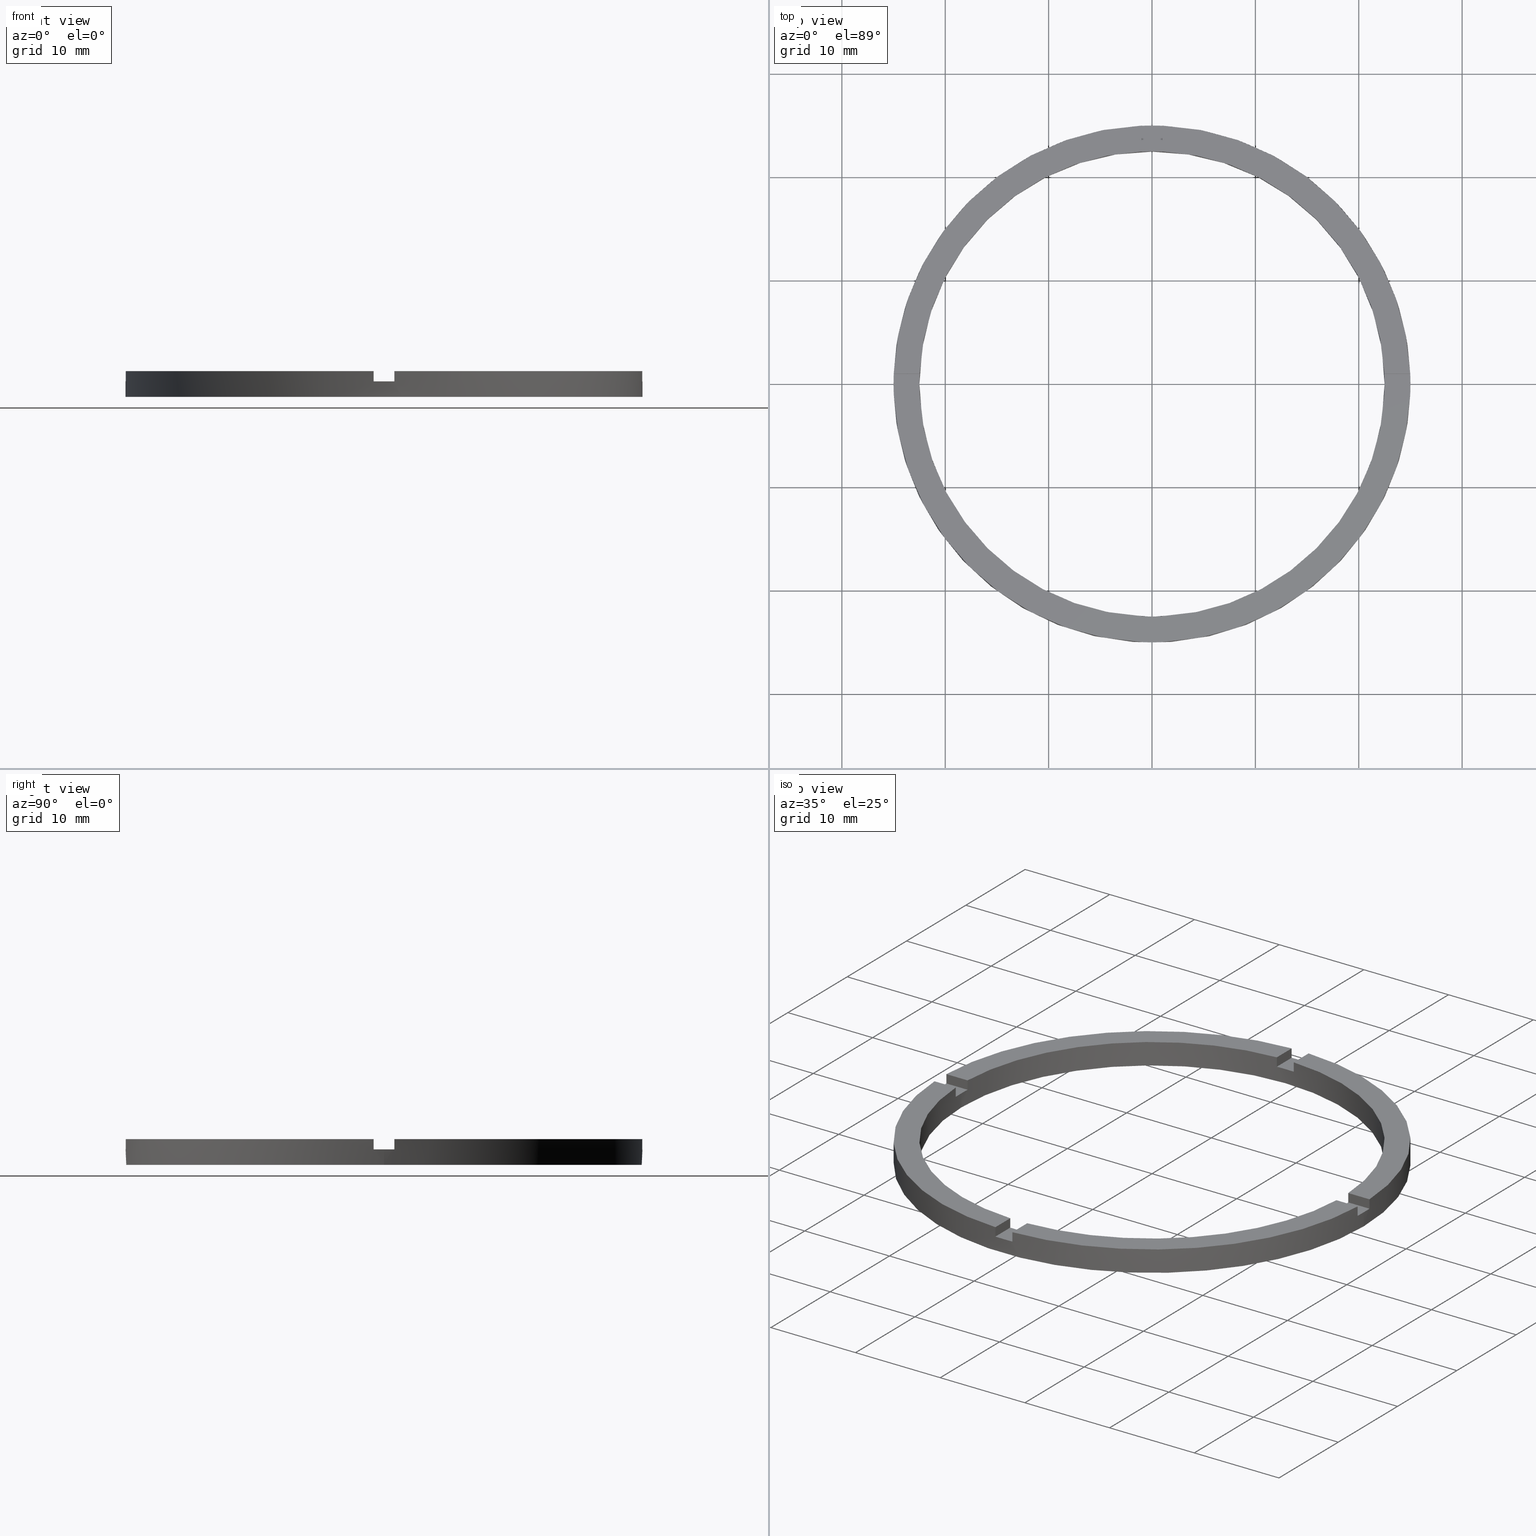
[diagram: canonical four-view strip — front | top / right | iso, engineering-drawing reading convention]
A machine part, canonical four-view strip (front | top / right | iso — engineering-drawing reading convention). The complete STEP part file that produces these views, byte-faithful:
ISO-10303-21;
HEADER;
FILE_DESCRIPTION (( 'STEP AP203' ),
    '1' );
FILE_NAME ('514104.step',
    '2024-12-26T02:37:53',
    ( 'MSI' ),
    ( '' ),
    'SwSTEP 2.0',
    'SolidWorks 2020',
    '' );
FILE_SCHEMA (( 'CONFIG_CONTROL_DESIGN' ));
ENDSEC;

DATA;
#1 = ORIENTED_EDGE ( 'NONE', *, *, #444, .T. ) ;
#2 = ORIENTED_EDGE ( 'NONE', *, *, #499, .F. ) ;
#3 = VERTEX_POINT ( 'NONE', #428 ) ;
#4 = EDGE_CURVE ( 'NONE', #275, #313, #141, .T. ) ;
#5 = CARTESIAN_POINT ( 'NONE',  ( -1.000000000000025979, 22.47776679298902636, 2.500000000000000000 ) ) ;
#6 = CARTESIAN_POINT ( 'NONE',  ( 0.000000000000000000, 0.000000000000000000, 0.000000000000000000 ) ) ;
#7 = DIRECTION ( 'NONE',  ( 0.000000000000000000, 0.000000000000000000, 1.000000000000000000 ) ) ;
#8 = CARTESIAN_POINT ( 'NONE',  ( 0.000000000000000000, 0.000000000000000000, 1.500000000000000000 ) ) ;
#9 = ORIENTED_EDGE ( 'NONE', *, *, #113, .F. ) ;
#10 = ORIENTED_EDGE ( 'NONE', *, *, #501, .T. ) ;
#11 = CARTESIAN_POINT ( 'NONE',  ( -15.00000000000018652, 0.9999999999999756861, 1.500000000000000000 ) ) ;
#12 = EDGE_CURVE ( 'NONE', #275, #412, #434, .T. ) ;
#13 = ORIENTED_EDGE ( 'NONE', *, *, #544, .T. ) ;
#14 = EDGE_CURVE ( 'NONE', #226, #413, #159, .T. ) ;
#15 = EDGE_CURVE ( 'NONE', #497, #229, #688, .T. ) ;
#16 = PLANE ( 'NONE',  #494 ) ;
#17 = ORIENTED_EDGE ( 'NONE', *, *, #535, .T. ) ;
#18 = ORIENTED_EDGE ( 'NONE', *, *, #330, .T. ) ;
#19 = VERTEX_POINT ( 'NONE', #697 ) ;
#20 = ORIENTED_EDGE ( 'NONE', *, *, #297, .F. ) ;
#21 = ORIENTED_EDGE ( 'NONE', *, *, #91, .T. ) ;
#22 = ORIENTED_EDGE ( 'NONE', *, *, #69, .T. ) ;
#23 = CARTESIAN_POINT ( 'NONE',  ( 14.99999999999999645, -1.000000000000157874, 1.500000000000000000 ) ) ;
#24 = DIRECTION ( 'NONE',  ( 1.301042606982605321E-16, -1.000000000000000000, 0.000000000000000000 ) ) ;
#25 = EDGE_LOOP ( 'NONE', ( #720, #468, #761, #17 ) ) ;
#26 = EDGE_CURVE ( 'NONE', #509, #164, #396, .T. ) ;
#27 = DIRECTION ( 'NONE',  ( -1.000000000000000000, -1.734723475976807341E-16, 0.000000000000000000 ) ) ;
#28 = CC_DESIGN_PERSON_AND_ORGANIZATION_ASSIGNMENT ( #561, #435, ( #334 ) ) ;
#29 = DIRECTION ( 'NONE',  ( 1.000000000000000000, 1.734723475976807341E-16, -0.000000000000000000 ) ) ;
#30 = CARTESIAN_POINT ( 'NONE',  ( 0.000000000000000000, 0.000000000000000000, 0.000000000000000000 ) ) ;
#31 = AXIS2_PLACEMENT_3D ( 'NONE', #104, #150, #291 ) ;
#32 = CARTESIAN_POINT ( 'NONE',  ( 22.50000000000000355, 2.755455298081545172E-15, 1.500000000000000000 ) ) ;
#33 = FACE_OUTER_BOUND ( 'NONE', #537, .T. ) ;
#34 = ADVANCED_FACE ( 'NONE', ( #386 ), #590, .F. ) ;
#35 = PERSON_AND_ORGANIZATION_ROLE ( 'design_owner' ) ;
#36 = DIRECTION ( 'NONE',  ( -0.000000000000000000, -0.000000000000000000, -1.000000000000000000 ) ) ;
#37 = LINE ( 'NONE', #417, #322 ) ;
#38 = PERSON_AND_ORGANIZATION ( #366, #546 ) ;
#39 = AXIS2_PLACEMENT_3D ( 'NONE', #406, #619, #551 ) ;
#40 = DIRECTION ( 'NONE',  ( -1.301042606982605321E-16, 1.000000000000000000, -0.000000000000000000 ) ) ;
#41 = PERSON_AND_ORGANIZATION ( #366, #546 ) ;
#42 = APPROVAL_ROLE ( '' ) ;
#43 = LOCAL_TIME ( 10, 37, 53.00000000000000000, #555 ) ;
#44 = ADVANCED_FACE ( 'NONE', ( #668 ), #663, .T. ) ;
#45 = EDGE_CURVE ( 'NONE', #313, #63, #686, .T. ) ;
#46 = AXIS2_PLACEMENT_3D ( 'NONE', #97, #134, #376 ) ;
#47 = PERSON_AND_ORGANIZATION ( #366, #546 ) ;
#48 = CALENDAR_DATE ( 2024, 26, 12 ) ;
#49 = APPROVAL_ROLE ( '' ) ;
#50 = LOCAL_TIME ( 10, 37, 53.00000000000000000, #64 ) ;
#51 = ORIENTED_EDGE ( 'NONE', *, *, #212, .T. ) ;
#52 = CIRCLE ( 'NONE', #392, 25.00000000000000000 ) ;
#53 = ORIENTED_EDGE ( 'NONE', *, *, #131, .T. ) ;
#54 = DATE_AND_TIME ( #566, #298 ) ;
#55 = PRODUCT_DEFINITION ( 'δ֪', '', #334, #263 ) ;
#56 = PLANE ( 'NONE',  #92 ) ;
#57 = ORIENTED_EDGE ( 'NONE', *, *, #634, .F. ) ;
#58 = EDGE_CURVE ( 'NONE', #223, #157, #679, .T. ) ;
#59 = DATE_AND_TIME ( #48, #571 ) ;
#60 = DIRECTION ( 'NONE',  ( 0.000000000000000000, 0.000000000000000000, 1.000000000000000000 ) ) ;
#61 = LINE ( 'NONE', #739, #573 ) ;
#62 = CARTESIAN_POINT ( 'NONE',  ( -15.00000000000018652, -1.000000000000024203, 1.500000000000000000 ) ) ;
#63 = VERTEX_POINT ( 'NONE', #776 ) ;
#64 = COORDINATED_UNIVERSAL_TIME_OFFSET ( 8, 0, .AHEAD. ) ;
#65 = ORIENTED_EDGE ( 'NONE', *, *, #473, .T. ) ;
#66 = AXIS2_PLACEMENT_3D ( 'NONE', #613, #364, #500 ) ;
#67 = CARTESIAN_POINT ( 'NONE',  ( 0.9999999999998391287, -22.47776679298903346, 2.500000000000000000 ) ) ;
#68 = UNCERTAINTY_MEASURE_WITH_UNIT (LENGTH_MEASURE( 1.000000000000000082E-05 ), #498, 'distance_accuracy_value', 'NONE');
#69 = EDGE_CURVE ( 'NONE', #413, #3, #659, .T. ) ;
#70 = CC_DESIGN_DATE_AND_TIME_ASSIGNMENT ( #54, #137, ( #303 ) ) ;
#71 = DIRECTION ( 'NONE',  ( 0.000000000000000000, 0.000000000000000000, 1.000000000000000000 ) ) ;
#72 = DIRECTION ( 'NONE',  ( -1.000000000000000000, 0.000000000000000000, 0.000000000000000000 ) ) ;
#73 = COORDINATED_UNIVERSAL_TIME_OFFSET ( 8, 0, .AHEAD. ) ;
#74 = CARTESIAN_POINT ( 'NONE',  ( -25.00000000000000000, 0.000000000000000000, 2.500000000000000000 ) ) ;
#75 = DATE_AND_TIME ( #587, #593 ) ;
#76 = DIRECTION ( 'NONE',  ( 1.000000000000000000, 0.000000000000000000, 0.000000000000000000 ) ) ;
#77 = DIRECTION ( 'NONE',  ( 1.000000000000000000, 0.000000000000000000, 0.000000000000000000 ) ) ;
#78 = DIRECTION ( 'NONE',  ( 1.000000000000000000, 0.000000000000000000, -0.000000000000000000 ) ) ;
#79 = DIRECTION ( 'NONE',  ( -0.000000000000000000, -0.000000000000000000, -1.000000000000000000 ) ) ;
#80 = AXIS2_PLACEMENT_3D ( 'NONE', #592, #777, #339 ) ;
#81 = CARTESIAN_POINT ( 'NONE',  ( 0.9999999999999740208, 22.47776679298902636, 1.500000000000000000 ) ) ;
#82 = EDGE_CURVE ( 'NONE', #400, #19, #153, .T. ) ;
#83 = CARTESIAN_POINT ( 'NONE',  ( -24.97999199359359679, 0.9999999999999740208, 1.500000000000000000 ) ) ;
#84 = ADVANCED_BREP_SHAPE_REPRESENTATION ( '514104', ( #124, #655 ), #770 ) ;
#85 = DIRECTION ( 'NONE',  ( -1.000000000000000000, -1.734723475976807341E-16, 0.000000000000000000 ) ) ;
#86 = CARTESIAN_POINT ( 'NONE',  ( -1.000000000000160538, -24.97999199359358968, 1.500000000000000000 ) ) ;
#87 = ADVANCED_FACE ( 'NONE', ( #393 ), #56, .T. ) ;
#88 = CARTESIAN_POINT ( 'NONE',  ( 22.47776679298903346, 0.9999999999998423483, 2.500000000000000000 ) ) ;
#89 = CC_DESIGN_PERSON_AND_ORGANIZATION_ASSIGNMENT ( #38, #35, ( #431 ) ) ;
#90 = SHAPE_DEFINITION_REPRESENTATION ( #658, #84 ) ;
#91 = EDGE_CURVE ( 'NONE', #682, #757, #671, .T. ) ;
#92 = AXIS2_PLACEMENT_3D ( 'NONE', #100, #338, #766 ) ;
#93 = DIRECTION ( 'NONE',  ( 1.000000000000000000, 0.000000000000000000, 0.000000000000000000 ) ) ;
#94 = CARTESIAN_POINT ( 'NONE',  ( -1.000000000000025979, 22.47776679298902636, 2.500000000000000000 ) ) ;
#95 = DIRECTION ( 'NONE',  ( 0.000000000000000000, 1.000000000000000000, 0.000000000000000000 ) ) ;
#96 = ADVANCED_FACE ( 'NONE', ( #145 ), #678, .F. ) ;
#97 = CARTESIAN_POINT ( 'NONE',  ( 0.000000000000000000, 0.000000000000000000, 1.500000000000000000 ) ) ;
#98 = PERSON_AND_ORGANIZATION_ROLE ( 'design_supplier' ) ;
#99 = DIRECTION ( 'NONE',  ( -0.000000000000000000, -0.000000000000000000, -1.000000000000000000 ) ) ;
#100 = CARTESIAN_POINT ( 'NONE',  ( 0.000000000000000000, 0.000000000000000000, 1.500000000000000000 ) ) ;
#101 = DIRECTION ( 'NONE',  ( -0.000000000000000000, -0.000000000000000000, -1.000000000000000000 ) ) ;
#102 = AXIS2_PLACEMENT_3D ( 'NONE', #377, #373, #122 ) ;
#103 = EDGE_CURVE ( 'NONE', #769, #491, #394, .T. ) ;
#104 = CARTESIAN_POINT ( 'NONE',  ( 0.000000000000000000, 0.000000000000000000, 2.500000000000000000 ) ) ;
#105 = CARTESIAN_POINT ( 'NONE',  ( 24.97999199359358968, -1.000000000000157430, 1.500000000000000000 ) ) ;
#106 = DIRECTION ( 'NONE',  ( -0.000000000000000000, -0.000000000000000000, -1.000000000000000000 ) ) ;
#107 = DIRECTION ( 'NONE',  ( 1.000000000000000000, 0.000000000000000000, -0.000000000000000000 ) ) ;
#108 = AXIS2_PLACEMENT_3D ( 'NONE', #349, #559, #550 ) ;
#109 = DIRECTION ( 'NONE',  ( 1.000000000000000000, 0.000000000000000000, -0.000000000000000000 ) ) ;
#110 = DIRECTION ( 'NONE',  ( 1.000000000000000000, 0.000000000000000000, 0.000000000000000000 ) ) ;
#111 = EDGE_CURVE ( 'NONE', #490, #497, #163, .T. ) ;
#112 = ORIENTED_EDGE ( 'NONE', *, *, #536, .T. ) ;
#113 = EDGE_CURVE ( 'NONE', #162, #744, #169, .T. ) ;
#114 = PRODUCT_RELATED_PRODUCT_CATEGORY ( 'detail', '', ( #431 ) ) ;
#115 = PLANE ( 'NONE',  #356 ) ;
#116 = CARTESIAN_POINT ( 'NONE',  ( -22.47776679298902636, -1.000000000000025535, 2.500000000000000000 ) ) ;
#117 = CARTESIAN_POINT ( 'NONE',  ( 0.000000000000000000, 0.000000000000000000, 2.500000000000000000 ) ) ;
#118 = DIRECTION ( 'NONE',  ( 0.000000000000000000, 0.000000000000000000, 1.000000000000000000 ) ) ;
#119 = ADVANCED_FACE ( 'NONE', ( #681 ), #348, .F. ) ;
#120 = CARTESIAN_POINT ( 'NONE',  ( 0.9999999999999740208, 15.00000000000000178, 2.500000000000000000 ) ) ;
#121 = DIRECTION ( 'NONE',  ( 1.000000000000000000, 0.000000000000000000, 0.000000000000000000 ) ) ;
#122 = DIRECTION ( 'NONE',  ( 1.000000000000000000, 0.000000000000000000, -0.000000000000000000 ) ) ;
#123 = CARTESIAN_POINT ( 'NONE',  ( 0.9999999999998382405, -15.00000000000018119, 1.500000000000000000 ) ) ;
#124 = MANIFOLD_SOLID_BREP ( '�г�-����1', #409 ) ;
#125 = CARTESIAN_POINT ( 'NONE',  ( 25.00000000000000000, 3.061616997868383043E-15, 2.500000000000000000 ) ) ;
#126 = DIRECTION ( 'NONE',  ( 1.000000000000000000, 0.000000000000000000, 0.000000000000000000 ) ) ;
#127 = EDGE_CURVE ( 'NONE', #527, #272, #419, .T. ) ;
#128 = DIRECTION ( 'NONE',  ( 1.000000000000000000, 0.000000000000000000, -0.000000000000000000 ) ) ;
#129 = CARTESIAN_POINT ( 'NONE',  ( 0.000000000000000000, 0.000000000000000000, 2.500000000000000000 ) ) ;
#130 = AXIS2_PLACEMENT_3D ( 'NONE', #545, #323, #354 ) ;
#131 = EDGE_CURVE ( 'NONE', #223, #135, #418, .T. ) ;
#132 = ADVANCED_FACE ( 'NONE', ( #147 ), #740, .F. ) ;
#133 = CARTESIAN_POINT ( 'NONE',  ( 0.000000000000000000, 0.000000000000000000, 1.500000000000000000 ) ) ;
#134 = DIRECTION ( 'NONE',  ( 0.000000000000000000, 0.000000000000000000, 1.000000000000000000 ) ) ;
#135 = VERTEX_POINT ( 'NONE', #723 ) ;
#136 = ADVANCED_FACE ( 'NONE', ( #422, #408 ), #644, .F. ) ;
#137 = DATE_TIME_ROLE ( 'classification_date' ) ;
#138 = APPROVAL ( #584, 'δָ��' ) ;
#139 = CARTESIAN_POINT ( 'NONE',  ( -24.97999199359359679, 0.9999999999999740208, 2.500000000000000000 ) ) ;
#140 = DIRECTION ( 'NONE',  ( 0.000000000000000000, 0.000000000000000000, 1.000000000000000000 ) ) ;
#141 = LINE ( 'NONE', #577, #660 ) ;
#142 = DIRECTION ( 'NONE',  ( 0.000000000000000000, 0.000000000000000000, 1.000000000000000000 ) ) ;
#143 = AXIS2_PLACEMENT_3D ( 'NONE', #286, #60, #225 ) ;
#144 = VECTOR ( 'NONE', #99, 1000.000000000000000 ) ;
#145 = FACE_OUTER_BOUND ( 'NONE', #158, .T. ) ;
#146 = VERTEX_POINT ( 'NONE', #598 ) ;
#147 = FACE_OUTER_BOUND ( 'NONE', #196, .T. ) ;
#148 = ORIENTED_EDGE ( 'NONE', *, *, #535, .F. ) ;
#149 = ORIENTED_EDGE ( 'NONE', *, *, #582, .T. ) ;
#150 = DIRECTION ( 'NONE',  ( 0.000000000000000000, 0.000000000000000000, 1.000000000000000000 ) ) ;
#151 = CARTESIAN_POINT ( 'NONE',  ( 0.000000000000000000, 0.000000000000000000, 2.500000000000000000 ) ) ;
#152 = VECTOR ( 'NONE', #462, 1000.000000000000000 ) ;
#153 = LINE ( 'NONE', #335, #666 ) ;
#154 = EDGE_CURVE ( 'NONE', #564, #725, #684, .T. ) ;
#155 = AXIS2_PLACEMENT_3D ( 'NONE', #780, #595, #514 ) ;
#156 = CARTESIAN_POINT ( 'NONE',  ( 0.9999999999999740208, 24.97999199359359679, 2.500000000000000000 ) ) ;
#157 = VERTEX_POINT ( 'NONE', #389 ) ;
#158 = EDGE_LOOP ( 'NONE', ( #533, #665, #531, #432, #480, #492, #53, #496, #729, #569, #260, #463 ) ) ;
#159 = CIRCLE ( 'NONE', #503, 22.50000000000000355 ) ;
#160 = CARTESIAN_POINT ( 'NONE',  ( 25.00000000000000000, 3.061616997868383043E-15, 0.000000000000000000 ) ) ;
#161 = CARTESIAN_POINT ( 'NONE',  ( 14.99999999999999645, 0.9999999999998421263, 1.500000000000000000 ) ) ;
#162 = VERTEX_POINT ( 'NONE', #600 ) ;
#163 = LINE ( 'NONE', #168, #414 ) ;
#164 = VERTEX_POINT ( 'NONE', #160 ) ;
#165 = CIRCLE ( 'NONE', #589, 25.00000000000000000 ) ;
#166 = ORIENTED_EDGE ( 'NONE', *, *, #26, .T. ) ;
#167 = LINE ( 'NONE', #346, #676 ) ;
#168 = CARTESIAN_POINT ( 'NONE',  ( -1.000000000000025979, 24.97999199359359679, 2.500000000000000000 ) ) ;
#169 = CIRCLE ( 'NONE', #351, 22.50000000000000355 ) ;
#170 = EDGE_LOOP ( 'NONE', ( #219, #180 ) ) ;
#171 = ORIENTED_EDGE ( 'NONE', *, *, #542, .T. ) ;
#172 = FACE_OUTER_BOUND ( 'NONE', #234, .T. ) ;
#173 = ORIENTED_EDGE ( 'NONE', *, *, #14, .F. ) ;
#174 = AXIS2_PLACEMENT_3D ( 'NONE', #8, #714, #77 ) ;
#175 = VERTEX_POINT ( 'NONE', #342 ) ;
#176 = ORIENTED_EDGE ( 'NONE', *, *, #4, .T. ) ;
#177 = VERTEX_POINT ( 'NONE', #522 ) ;
#178 = ORIENTED_EDGE ( 'NONE', *, *, #615, .F. ) ;
#179 = CARTESIAN_POINT ( 'NONE',  ( -1.000000000000160538, -24.97999199359358968, 2.500000000000000000 ) ) ;
#180 = ORIENTED_EDGE ( 'NONE', *, *, #350, .F. ) ;
#181 = VECTOR ( 'NONE', #101, 1000.000000000000000 ) ;
#182 = CIRCLE ( 'NONE', #108, 22.50000000000000355 ) ;
#183 = VECTOR ( 'NONE', #382, 1000.000000000000000 ) ;
#184 = CARTESIAN_POINT ( 'NONE',  ( -22.50000000000000355, 0.000000000000000000, 0.000000000000000000 ) ) ;
#185 = EDGE_CURVE ( 'NONE', #564, #526, #165, .T. ) ;
#186 = FACE_OUTER_BOUND ( 'NONE', #574, .T. ) ;
#187 = CIRCLE ( 'NONE', #80, 22.50000000000000355 ) ;
#188 = CC_DESIGN_APPROVAL ( #138, ( #334 ) ) ;
#189 = ADVANCED_FACE ( 'NONE', ( #690 ), #647, .T. ) ;
#190 = CARTESIAN_POINT ( 'NONE',  ( 24.97999199359360034, 0.9999999999998425704, 1.500000000000000000 ) ) ;
#191 = ORIENTED_EDGE ( 'NONE', *, *, #222, .T. ) ;
#192 = LINE ( 'NONE', #618, #201 ) ;
#193 = CIRCLE ( 'NONE', #471, 22.50000000000000355 ) ;
#194 = CARTESIAN_POINT ( 'NONE',  ( 0.000000000000000000, 0.000000000000000000, 1.500000000000000000 ) ) ;
#195 = VECTOR ( 'NONE', #387, 1000.000000000000000 ) ;
#196 = EDGE_LOOP ( 'NONE', ( #257, #65, #1, #57 ) ) ;
#197 = CIRCLE ( 'NONE', #588, 25.00000000000000000 ) ;
#198 = VECTOR ( 'NONE', #142, 1000.000000000000000 ) ;
#199 = CIRCLE ( 'NONE', #344, 25.00000000000000000 ) ;
#200 = CARTESIAN_POINT ( 'NONE',  ( 0.000000000000000000, 0.000000000000000000, 2.500000000000000000 ) ) ;
#201 = VECTOR ( 'NONE', #654, 1000.000000000000000 ) ;
#202 = LINE ( 'NONE', #614, #747 ) ;
#203 = LINE ( 'NONE', #120, #733 ) ;
#204 = PLANE ( 'NONE',  #312 ) ;
#205 = LINE ( 'NONE', #340, #440 ) ;
#206 = APPLICATION_CONTEXT ( 'configuration controlled 3d designs of mechanical parts and assemblies' ) ;
#207 = VECTOR ( 'NONE', #384, 1000.000000000000000 ) ;
#208 = CIRCLE ( 'NONE', #31, 25.00000000000000000 ) ;
#209 = ORIENTED_EDGE ( 'NONE', *, *, #374, .F. ) ;
#210 = LINE ( 'NONE', #649, #474 ) ;
#211 = DIRECTION ( 'NONE',  ( -0.000000000000000000, -0.000000000000000000, -1.000000000000000000 ) ) ;
#212 = EDGE_CURVE ( 'NONE', #226, #762, #167, .T. ) ;
#213 = ORIENTED_EDGE ( 'NONE', *, *, #12, .F. ) ;
#214 = CYLINDRICAL_SURFACE ( 'NONE', #371, 22.50000000000000355 ) ;
#215 = FACE_OUTER_BOUND ( 'NONE', #25, .T. ) ;
#216 = LINE ( 'NONE', #669, #449 ) ;
#217 = ORIENTED_EDGE ( 'NONE', *, *, #609, .F. ) ;
#218 = CARTESIAN_POINT ( 'NONE',  ( -22.47776679298902636, -1.000000000000025535, 2.500000000000000000 ) ) ;
#219 = ORIENTED_EDGE ( 'NONE', *, *, #26, .F. ) ;
#220 = PLANE ( 'NONE',  #102 ) ;
#221 = ORIENTED_EDGE ( 'NONE', *, *, #705, .T. ) ;
#222 = EDGE_CURVE ( 'NONE', #490, #783, #425, .T. ) ;
#223 = VERTEX_POINT ( 'NONE', #116 ) ;
#224 = EDGE_CURVE ( 'NONE', #272, #3, #673, .T. ) ;
#225 = DIRECTION ( 'NONE',  ( 1.000000000000000000, 0.000000000000000000, -0.000000000000000000 ) ) ;
#226 = VERTEX_POINT ( 'NONE', #632 ) ;
#227 = AXIS2_PLACEMENT_3D ( 'NONE', #523, #211, #72 ) ;
#228 = PLANE ( 'NONE',  #529 ) ;
#229 = VERTEX_POINT ( 'NONE', #706 ) ;
#230 = DIRECTION ( 'NONE',  ( 0.000000000000000000, 0.000000000000000000, 1.000000000000000000 ) ) ;
#231 = ORIENTED_EDGE ( 'NONE', *, *, #773, .F. ) ;
#232 = VERTEX_POINT ( 'NONE', #105 ) ;
#233 = ORIENTED_EDGE ( 'NONE', *, *, #455, .F. ) ;
#234 = EDGE_LOOP ( 'NONE', ( #239, #22, #767, #280, #756, #10, #483, #18, #680, #410, #270, #9 ) ) ;
#235 = ORIENTED_EDGE ( 'NONE', *, *, #111, .F. ) ;
#236 = ORIENTED_EDGE ( 'NONE', *, *, #15, .F. ) ;
#237 = AXIS2_PLACEMENT_3D ( 'NONE', #557, #395, #549 ) ;
#238 = ORIENTED_EDGE ( 'NONE', *, *, #12, .T. ) ;
#239 = ORIENTED_EDGE ( 'NONE', *, *, #657, .F. ) ;
#240 = ORIENTED_EDGE ( 'NONE', *, *, #608, .F. ) ;
#241 = CARTESIAN_POINT ( 'NONE',  ( -22.50000000000000355, 0.000000000000000000, 1.500000000000000000 ) ) ;
#242 = DIRECTION ( 'NONE',  ( -0.000000000000000000, -0.000000000000000000, -1.000000000000000000 ) ) ;
#243 = ORIENTED_EDGE ( 'NONE', *, *, #350, .T. ) ;
#244 = DIRECTION ( 'NONE',  ( -1.301042606982605321E-16, 1.000000000000000000, 0.000000000000000000 ) ) ;
#245 = PLANE ( 'NONE',  #638 ) ;
#246 = DIRECTION ( 'NONE',  ( 0.000000000000000000, 0.000000000000000000, 1.000000000000000000 ) ) ;
#247 = DIRECTION ( 'NONE',  ( 1.000000000000000000, -0.000000000000000000, 0.000000000000000000 ) ) ;
#248 = ADVANCED_FACE ( 'NONE', ( #172 ), #214, .F. ) ;
#249 = DIRECTION ( 'NONE',  ( -0.000000000000000000, -0.000000000000000000, -1.000000000000000000 ) ) ;
#250 = DIRECTION ( 'NONE',  ( 0.000000000000000000, 0.000000000000000000, 1.000000000000000000 ) ) ;
#251 = CARTESIAN_POINT ( 'NONE',  ( 22.47776679298903346, 0.9999999999998423483, 2.500000000000000000 ) ) ;
#252 = ORIENTED_EDGE ( 'NONE', *, *, #127, .F. ) ;
#253 = EDGE_CURVE ( 'NONE', #429, #229, #469, .T. ) ;
#254 = ORIENTED_EDGE ( 'NONE', *, *, #333, .T. ) ;
#255 = VERTEX_POINT ( 'NONE', #479 ) ;
#256 = DIRECTION ( 'NONE',  ( -1.734723475976807341E-16, 1.000000000000000000, 0.000000000000000000 ) ) ;
#257 = ORIENTED_EDGE ( 'NONE', *, *, #333, .F. ) ;
#258 = CARTESIAN_POINT ( 'NONE',  ( -25.00000000000000000, 0.000000000000000000, 1.500000000000000000 ) ) ;
#259 = CARTESIAN_POINT ( 'NONE',  ( -1.000000000000161871, -15.00000000000018119, 1.500000000000000000 ) ) ;
#260 = ORIENTED_EDGE ( 'NONE', *, *, #580, .T. ) ;
#261 = ORIENTED_EDGE ( 'NONE', *, *, #615, .T. ) ;
#262 = PLANE ( 'NONE',  #667 ) ;
#263 = DESIGN_CONTEXT ( 'detailed design', #206, 'design' ) ;
#264 = ORIENTED_EDGE ( 'NONE', *, *, #224, .F. ) ;
#265 = CARTESIAN_POINT ( 'NONE',  ( -24.97999199359359679, 0.9999999999999740208, 2.500000000000000000 ) ) ;
#266 = EDGE_CURVE ( 'NONE', #711, #63, #193, .T. ) ;
#267 = CARTESIAN_POINT ( 'NONE',  ( -15.00000000000018652, 0.9999999999999756861, 1.500000000000000000 ) ) ;
#268 = ORIENTED_EDGE ( 'NONE', *, *, #103, .F. ) ;
#269 = EDGE_LOOP ( 'NONE', ( #317, #458, #672, #689, #173, #755 ) ) ;
#270 = ORIENTED_EDGE ( 'NONE', *, *, #347, .T. ) ;
#271 = ORIENTED_EDGE ( 'NONE', *, *, #630, .F. ) ;
#272 = VERTEX_POINT ( 'NONE', #190 ) ;
#273 = DIRECTION ( 'NONE',  ( 1.301042606982605321E-16, -1.000000000000000000, 0.000000000000000000 ) ) ;
#274 = APPLICATION_PROTOCOL_DEFINITION ( 'international standard', 'config_control_design', 1994, #206 ) ;
#275 = VERTEX_POINT ( 'NONE', #710 ) ;
#276 = ORIENTED_EDGE ( 'NONE', *, *, #639, .T. ) ;
#277 = ORIENTED_EDGE ( 'NONE', *, *, #444, .F. ) ;
#278 = ORIENTED_EDGE ( 'NONE', *, *, #634, .T. ) ;
#279 = ADVANCED_FACE ( 'NONE', ( #186 ), #380, .F. ) ;
#280 = ORIENTED_EDGE ( 'NONE', *, *, #103, .T. ) ;
#281 = DIRECTION ( 'NONE',  ( 1.000000000000000000, 0.000000000000000000, 0.000000000000000000 ) ) ;
#282 = DIRECTION ( 'NONE',  ( 1.000000000000000000, 0.000000000000000000, 0.000000000000000000 ) ) ;
#283 = AXIS2_PLACEMENT_3D ( 'NONE', #133, #576, #398 ) ;
#284 = LINE ( 'NONE', #179, #547 ) ;
#285 = EDGE_CURVE ( 'NONE', #757, #509, #464, .T. ) ;
#286 = CARTESIAN_POINT ( 'NONE',  ( 0.000000000000000000, 0.000000000000000000, 2.500000000000000000 ) ) ;
#287 = CARTESIAN_POINT ( 'NONE',  ( 0.000000000000000000, 0.000000000000000000, 1.500000000000000000 ) ) ;
#288 = AXIS2_PLACEMENT_3D ( 'NONE', #117, #650, #552 ) ;
#289 = CALENDAR_DATE ( 2024, 26, 12 ) ;
#290 = APPROVAL_PERSON_ORGANIZATION ( #304, #138, #42 ) ;
#291 = DIRECTION ( 'NONE',  ( 1.000000000000000000, 0.000000000000000000, 0.000000000000000000 ) ) ;
#292 = CALENDAR_DATE ( 2024, 26, 12 ) ;
#293 = DIRECTION ( 'NONE',  ( -0.000000000000000000, -0.000000000000000000, -1.000000000000000000 ) ) ;
#294 = APPROVAL_DATE_TIME ( #558, #138 ) ;
#295 = AXIS2_PLACEMENT_3D ( 'NONE', #11, #256, #85 ) ;
#296 = COORDINATED_UNIVERSAL_TIME_OFFSET ( 8, 0, .AHEAD. ) ;
#297 = EDGE_CURVE ( 'NONE', #19, #255, #741, .T. ) ;
#298 = LOCAL_TIME ( 10, 37, 53.00000000000000000, #296 ) ;
#299 = CARTESIAN_POINT ( 'NONE',  ( -24.97999199359359679, -1.000000000000025979, 2.500000000000000000 ) ) ;
#300 = ORIENTED_EDGE ( 'NONE', *, *, #512, .T. ) ;
#301 = CIRCLE ( 'NONE', #283, 25.00000000000000000 ) ;
#302 = CARTESIAN_POINT ( 'NONE',  ( 0.000000000000000000, 0.000000000000000000, 2.500000000000000000 ) ) ;
#303 = SECURITY_CLASSIFICATION ( '', '', #625 ) ;
#304 = PERSON_AND_ORGANIZATION ( #366, #546 ) ;
#305 = EDGE_LOOP ( 'NONE', ( #407, #401, #423, #485 ) ) ;
#306 = PERSON_AND_ORGANIZATION ( #366, #546 ) ;
#307 = ORIENTED_EDGE ( 'NONE', *, *, #285, .F. ) ;
#308 = DIRECTION ( 'NONE',  ( 1.000000000000000000, 0.000000000000000000, -0.000000000000000000 ) ) ;
#309 = APPROVAL_DATE_TIME ( #554, #775 ) ;
#310 = DIRECTION ( 'NONE',  ( -0.000000000000000000, -0.000000000000000000, -1.000000000000000000 ) ) ;
#311 = DIRECTION ( 'NONE',  ( 1.000000000000000000, 0.000000000000000000, 0.000000000000000000 ) ) ;
#312 = AXIS2_PLACEMENT_3D ( 'NONE', #759, #433, #581 ) ;
#313 = VERTEX_POINT ( 'NONE', #736 ) ;
#314 = DIRECTION ( 'NONE',  ( 0.000000000000000000, 0.000000000000000000, 1.000000000000000000 ) ) ;
#315 = ADVANCED_FACE ( 'NONE', ( #735 ), #262, .F. ) ;
#316 = CARTESIAN_POINT ( 'NONE',  ( 0.9999999999999740208, 22.47776679298902636, 2.500000000000000000 ) ) ;
#317 = ORIENTED_EDGE ( 'NONE', *, *, #543, .T. ) ;
#318 = CYLINDRICAL_SURFACE ( 'NONE', #39, 25.00000000000000000 ) ;
#319 = DIRECTION ( 'NONE',  ( 0.000000000000000000, 0.000000000000000000, 1.000000000000000000 ) ) ;
#320 = ORIENTED_EDGE ( 'NONE', *, *, #602, .T. ) ;
#321 = DIRECTION ( 'NONE',  ( 1.000000000000000000, 0.000000000000000000, 0.000000000000000000 ) ) ;
#322 = VECTOR ( 'NONE', #250, 1000.000000000000000 ) ;
#323 = DIRECTION ( 'NONE',  ( -1.000000000000000000, 0.000000000000000000, 0.000000000000000000 ) ) ;
#325 = EDGE_CURVE ( 'NONE', #232, #177, #745, .T. ) ;
#324 = ADVANCED_FACE ( 'NONE', ( #709 ), #115, .T. ) ;
#326 = APPROVAL_DATE_TIME ( #75, #516 ) ;
#327 = DIRECTION ( 'NONE',  ( -1.000000000000000000, -4.336808689942018352E-17, -0.000000000000000000 ) ) ;
#328 = ADVANCED_FACE ( 'NONE', ( #437 ), #403, .T. ) ;
#329 = APPLICATION_CONTEXT ( 'configuration controlled 3d designs of mechanical parts and assemblies' ) ;
#330 = EDGE_CURVE ( 'NONE', #429, #146, #727, .T. ) ;
#331 = EDGE_CURVE ( 'NONE', #481, #157, #707, .T. ) ;
#332 = DIRECTION ( 'NONE',  ( 0.000000000000000000, 0.000000000000000000, 1.000000000000000000 ) ) ;
#333 = EDGE_CURVE ( 'NONE', #711, #404, #192, .T. ) ;
#334 = PRODUCT_DEFINITION_FORMATION_WITH_SPECIFIED_SOURCE ( '�κ�', '', #431, .NOT_KNOWN. ) ;
#335 = CARTESIAN_POINT ( 'NONE',  ( 0.9999999999999740208, 15.00000000000000178, 1.500000000000000000 ) ) ;
#336 = ORIENTED_EDGE ( 'NONE', *, *, #91, .F. ) ;
#337 = DIRECTION ( 'NONE',  ( 0.000000000000000000, 0.000000000000000000, 1.000000000000000000 ) ) ;
#338 = DIRECTION ( 'NONE',  ( -0.000000000000000000, 0.000000000000000000, 1.000000000000000000 ) ) ;
#339 = DIRECTION ( 'NONE',  ( 1.000000000000000000, 0.000000000000000000, 0.000000000000000000 ) ) ;
#340 = CARTESIAN_POINT ( 'NONE',  ( -15.00000000000018652, -1.000000000000024203, 1.500000000000000000 ) ) ;
#341 = CARTESIAN_POINT ( 'NONE',  ( -25.00000000000000000, 0.000000000000000000, 0.000000000000000000 ) ) ;
#342 = CARTESIAN_POINT ( 'NONE',  ( -22.47776679298902636, 0.9999999999999744649, 1.500000000000000000 ) ) ;
#343 = DIRECTION ( 'NONE',  ( 0.000000000000000000, 1.000000000000000000, 0.000000000000000000 ) ) ;
#344 = AXIS2_PLACEMENT_3D ( 'NONE', #635, #695, #121 ) ;
#345 = DIRECTION ( 'NONE',  ( 0.000000000000000000, -0.000000000000000000, 1.000000000000000000 ) ) ;
#346 = CARTESIAN_POINT ( 'NONE',  ( 22.47776679298901925, -1.000000000000157652, 2.500000000000000000 ) ) ;
#347 = EDGE_CURVE ( 'NONE', #481, #744, #443, .T. ) ;
#348 = PLANE ( 'NONE',  #610 ) ;
#349 = CARTESIAN_POINT ( 'NONE',  ( 0.000000000000000000, 0.000000000000000000, 0.000000000000000000 ) ) ;
#350 = EDGE_CURVE ( 'NONE', #164, #509, #738, .T. ) ;
#351 = AXIS2_PLACEMENT_3D ( 'NONE', #6, #385, #110 ) ;
#352 = DIRECTION ( 'NONE',  ( 0.000000000000000000, 0.000000000000000000, 1.000000000000000000 ) ) ;
#353 = CARTESIAN_POINT ( 'NONE',  ( 0.000000000000000000, 0.000000000000000000, 1.500000000000000000 ) ) ;
#354 = DIRECTION ( 'NONE',  ( 0.000000000000000000, 0.000000000000000000, 1.000000000000000000 ) ) ;
#355 = PLANE ( 'NONE',  #699 ) ;
#356 = AXIS2_PLACEMENT_3D ( 'NONE', #605, #71, #78 ) ;
#357 = CC_DESIGN_PERSON_AND_ORGANIZATION_ASSIGNMENT ( #47, #442, ( #303 ) ) ;
#358 = DIRECTION ( 'NONE',  ( 1.000000000000000000, 4.336808689942018352E-17, 0.000000000000000000 ) ) ;
#359 = CARTESIAN_POINT ( 'NONE',  ( -22.50000000000000355, 0.000000000000000000, 2.500000000000000000 ) ) ;
#360 = DIRECTION ( 'NONE',  ( 0.000000000000000000, 0.000000000000000000, 1.000000000000000000 ) ) ;
#361 = ADVANCED_FACE ( 'NONE', ( #215 ), #245, .T. ) ;
#362 = DIRECTION ( 'NONE',  ( 0.000000000000000000, 0.000000000000000000, 1.000000000000000000 ) ) ;
#363 = EDGE_LOOP ( 'NONE', ( #240, #51, #300, #515 ) ) ;
#364 = DIRECTION ( 'NONE',  ( 0.000000000000000000, 0.000000000000000000, 1.000000000000000000 ) ) ;
#365 = APPLICATION_PROTOCOL_DEFINITION ( 'international standard', 'config_control_design', 1994, #329 ) ;
#366 = PERSON ( 'δָ��', 'δָ��', 'δָ��', ('δָ��'), ('δָ��'), ('δָ��') ) ;
#367 = CARTESIAN_POINT ( 'NONE',  ( 0.9999999999998382405, -15.00000000000018119, 1.500000000000000000 ) ) ;
#368 = CARTESIAN_POINT ( 'NONE',  ( 22.47776679298901925, -1.000000000000157652, 2.500000000000000000 ) ) ;
#369 = EDGE_CURVE ( 'NONE', #744, #162, #182, .T. ) ;
#370 = APPROVAL_STATUS ( 'not_yet_approved' ) ;
#371 = AXIS2_PLACEMENT_3D ( 'NONE', #151, #242, #472 ) ;
#372 = EDGE_CURVE ( 'NONE', #490, #429, #210, .T. ) ;
#373 = DIRECTION ( 'NONE',  ( 0.000000000000000000, 0.000000000000000000, 1.000000000000000000 ) ) ;
#374 = EDGE_CURVE ( 'NONE', #146, #783, #202, .T. ) ;
#375 = CARTESIAN_POINT ( 'NONE',  ( 0.000000000000000000, 0.000000000000000000, 0.000000000000000000 ) ) ;
#376 = DIRECTION ( 'NONE',  ( 1.000000000000000000, 0.000000000000000000, 0.000000000000000000 ) ) ;
#377 = CARTESIAN_POINT ( 'NONE',  ( 0.000000000000000000, 0.000000000000000000, 1.500000000000000000 ) ) ;
#378 = DIRECTION ( 'NONE',  ( 1.000000000000000000, 0.000000000000000000, 0.000000000000000000 ) ) ;
#379 = CARTESIAN_POINT ( 'NONE',  ( 24.97999199359360034, 0.9999999999998425704, 2.500000000000000000 ) ) ;
#380 = PLANE ( 'NONE',  #295 ) ;
#381 = ORIENTED_EDGE ( 'NONE', *, *, #411, .F. ) ;
#382 = DIRECTION ( 'NONE',  ( 1.000000000000000000, 4.336808689942018352E-17, 0.000000000000000000 ) ) ;
#383 = DIRECTION ( 'NONE',  ( 0.000000000000000000, 0.000000000000000000, 1.000000000000000000 ) ) ;
#384 = DIRECTION ( 'NONE',  ( -0.000000000000000000, -0.000000000000000000, -1.000000000000000000 ) ) ;
#385 = DIRECTION ( 'NONE',  ( 0.000000000000000000, 0.000000000000000000, 1.000000000000000000 ) ) ;
#386 = FACE_OUTER_BOUND ( 'NONE', #363, .T. ) ;
#387 = DIRECTION ( 'NONE',  ( 0.000000000000000000, 0.000000000000000000, 1.000000000000000000 ) ) ;
#388 = EDGE_LOOP ( 'NONE', ( #149, #521, #478, #528 ) ) ;
#389 = CARTESIAN_POINT ( 'NONE',  ( -22.47776679298902636, -1.000000000000025535, 1.500000000000000000 ) ) ;
#390 = VECTOR ( 'NONE', #36, 1000.000000000000000 ) ;
#391 = DIRECTION ( 'NONE',  ( 0.000000000000000000, 0.000000000000000000, -1.000000000000000000 ) ) ;
#392 = AXIS2_PLACEMENT_3D ( 'NONE', #194, #617, #504 ) ;
#393 = FACE_OUTER_BOUND ( 'NONE', #751, .T. ) ;
#394 = CIRCLE ( 'NONE', #415, 22.50000000000000355 ) ;
#395 = DIRECTION ( 'NONE',  ( 0.000000000000000000, 0.000000000000000000, 1.000000000000000000 ) ) ;
#396 = CIRCLE ( 'NONE', #155, 25.00000000000000000 ) ;
#397 = AXIS2_PLACEMENT_3D ( 'NONE', #259, #612, #24 ) ;
#398 = DIRECTION ( 'NONE',  ( 1.000000000000000000, 0.000000000000000000, 0.000000000000000000 ) ) ;
#399 = EDGE_LOOP ( 'NONE', ( #178, #426, #534, #148, #238, #231, #278, #760, #525, #539, #691, #166 ) ) ;
#400 = VERTEX_POINT ( 'NONE', #81 ) ;
#401 = ORIENTED_EDGE ( 'NONE', *, *, #58, .T. ) ;
#402 = VECTOR ( 'NONE', #310, 1000.000000000000000 ) ;
#403 = PLANE ( 'NONE',  #734 ) ;
#404 = VERTEX_POINT ( 'NONE', #86 ) ;
#405 = VECTOR ( 'NONE', #456, 1000.000000000000000 ) ;
#406 = CARTESIAN_POINT ( 'NONE',  ( 0.000000000000000000, 0.000000000000000000, 2.500000000000000000 ) ) ;
#407 = ORIENTED_EDGE ( 'NONE', *, *, #630, .T. ) ;
#408 = FACE_BOUND ( 'NONE', #488, .T. ) ;
#409 = CLOSED_SHELL ( 'NONE', ( #96, #648, #328, #772, #361, #189, #136, #44, #248, #568, #279, #548, #315, #132, #87, #119, #34, #324, #656, #560, #420 ) ) ;
#410 = ORIENTED_EDGE ( 'NONE', *, *, #455, .T. ) ;
#411 = EDGE_CURVE ( 'NONE', #412, #63, #726, .T. ) ;
#412 = VERTEX_POINT ( 'NONE', #661 ) ;
#413 = VERTEX_POINT ( 'NONE', #32 ) ;
#414 = VECTOR ( 'NONE', #604, 1000.000000000000000 ) ;
#415 = AXIS2_PLACEMENT_3D ( 'NONE', #302, #246, #311 ) ;
#416 = CC_DESIGN_SECURITY_CLASSIFICATION ( #303, ( #334 ) ) ;
#417 = CARTESIAN_POINT ( 'NONE',  ( -22.47776679298902636, 0.9999999999999744649, 2.500000000000000000 ) ) ;
#418 = CIRCLE ( 'NONE', #288, 22.50000000000000355 ) ;
#419 = CIRCLE ( 'NONE', #174, 25.00000000000000000 ) ;
#420 = ADVANCED_FACE ( 'NONE', ( #438 ), #204, .T. ) ;
#421 = ORIENTED_EDGE ( 'NONE', *, *, #372, .T. ) ;
#422 = FACE_OUTER_BOUND ( 'NONE', #170, .T. ) ;
#423 = ORIENTED_EDGE ( 'NONE', *, *, #544, .F. ) ;
#424 = CARTESIAN_POINT ( 'NONE',  ( 0.000000000000000000, 0.000000000000000000, 1.500000000000000000 ) ) ;
#425 = CIRCLE ( 'NONE', #771, 25.00000000000000000 ) ;
#426 = ORIENTED_EDGE ( 'NONE', *, *, #543, .F. ) ;
#427 = MECHANICAL_CONTEXT ( 'NONE', #329, 'mechanical' ) ;
#428 = CARTESIAN_POINT ( 'NONE',  ( 22.47776679298903346, 0.9999999999998423483, 1.500000000000000000 ) ) ;
#429 = VERTEX_POINT ( 'NONE', #94 ) ;
#430 = EDGE_LOOP ( 'NONE', ( #21, #221, #13, #520, #233, #276 ) ) ;
#431 = PRODUCT ( '514104', '514104', '', ( #427 ) ) ;
#432 = ORIENTED_EDGE ( 'NONE', *, *, #347, .F. ) ;
#433 = DIRECTION ( 'NONE',  ( 0.000000000000000000, -0.000000000000000000, 1.000000000000000000 ) ) ;
#434 = LINE ( 'NONE', #664, #390 ) ;
#435 = PERSON_AND_ORGANIZATION_ROLE ( 'creator' ) ;
#436 = ORIENTED_EDGE ( 'NONE', *, *, #372, .F. ) ;
#437 = FACE_OUTER_BOUND ( 'NONE', #746, .T. ) ;
#438 = FACE_OUTER_BOUND ( 'NONE', #388, .T. ) ;
#439 = ORIENTED_EDGE ( 'NONE', *, *, #499, .T. ) ;
#440 = VECTOR ( 'NONE', #628, 1000.000000000000000 ) ;
#441 = LINE ( 'NONE', #316, #743 ) ;
#442 = PERSON_AND_ORGANIZATION_ROLE ( 'classification_officer' ) ;
#443 = LINE ( 'NONE', #359, #454 ) ;
#444 = EDGE_CURVE ( 'NONE', #135, #526, #216, .T. ) ;
#445 = LINE ( 'NONE', #685, #181 ) ;
#446 = CIRCLE ( 'NONE', #540, 22.50000000000000355 ) ;
#447 = LINE ( 'NONE', #23, #459 ) ;
#448 = VECTOR ( 'NONE', #327, 1000.000000000000000 ) ;
#449 = VECTOR ( 'NONE', #273, 1000.000000000000000 ) ;
#450 = ORIENTED_EDGE ( 'NONE', *, *, #536, .F. ) ;
#451 = VECTOR ( 'NONE', #319, 1000.000000000000000 ) ;
#452 = CARTESIAN_POINT ( 'NONE',  ( 0.000000000000000000, 0.000000000000000000, 2.500000000000000000 ) ) ;
#453 = ORIENTED_EDGE ( 'NONE', *, *, #609, .T. ) ;
#454 = VECTOR ( 'NONE', #758, 1000.000000000000000 ) ;
#455 = EDGE_CURVE ( 'NONE', #175, #481, #446, .T. ) ;
#456 = DIRECTION ( 'NONE',  ( -0.000000000000000000, -1.000000000000000000, -0.000000000000000000 ) ) ;
#457 = LINE ( 'NONE', #125, #732 ) ;
#458 = ORIENTED_EDGE ( 'NONE', *, *, #127, .T. ) ;
#459 = VECTOR ( 'NONE', #358, 1000.000000000000000 ) ;
#460 = VECTOR ( 'NONE', #249, 1000.000000000000000 ) ;
#461 = DIRECTION ( 'NONE',  ( 0.000000000000000000, 0.000000000000000000, 1.000000000000000000 ) ) ;
#462 = DIRECTION ( 'NONE',  ( -1.000000000000000000, -4.336808689942018352E-17, -0.000000000000000000 ) ) ;
#463 = ORIENTED_EDGE ( 'NONE', *, *, #212, .F. ) ;
#464 = LINE ( 'NONE', #74, #460 ) ;
#465 = FACE_OUTER_BOUND ( 'NONE', #430, .T. ) ;
#466 = DIRECTION ( 'NONE',  ( 1.000000000000000000, 1.301042606982605321E-16, 0.000000000000000000 ) ) ;
#467 = VECTOR ( 'NONE', #40, 1000.000000000000000 ) ;
#468 = ORIENTED_EDGE ( 'NONE', *, *, #580, .F. ) ;
#469 = LINE ( 'NONE', #5, #207 ) ;
#470 = DIRECTION ( 'NONE',  ( 0.000000000000000000, 0.000000000000000000, 1.000000000000000000 ) ) ;
#471 = AXIS2_PLACEMENT_3D ( 'NONE', #353, #652, #126 ) ;
#472 = DIRECTION ( 'NONE',  ( -1.000000000000000000, 0.000000000000000000, 0.000000000000000000 ) ) ;
#473 = EDGE_CURVE ( 'NONE', #711, #135, #475, .T. ) ;
#474 = VECTOR ( 'NONE', #737, 1000.000000000000000 ) ;
#475 = LINE ( 'NONE', #502, #749 ) ;
#476 = CC_DESIGN_PERSON_AND_ORGANIZATION_ASSIGNMENT ( #562, #98, ( #334 ) ) ;
#477 = ORIENTED_EDGE ( 'NONE', *, *, #624, .T. ) ;
#478 = ORIENTED_EDGE ( 'NONE', *, *, #501, .F. ) ;
#479 = CARTESIAN_POINT ( 'NONE',  ( 0.9999999999999740208, 24.97999199359359679, 2.500000000000000000 ) ) ;
#480 = ORIENTED_EDGE ( 'NONE', *, *, #331, .T. ) ;
#481 = VERTEX_POINT ( 'NONE', #241 ) ;
#482 = CARTESIAN_POINT ( 'NONE',  ( 24.97999199359358968, -1.000000000000157430, 2.500000000000000000 ) ) ;
#483 = ORIENTED_EDGE ( 'NONE', *, *, #253, .F. ) ;
#484 = AXIS2_PLACEMENT_3D ( 'NONE', #704, #345, #713 ) ;
#485 = ORIENTED_EDGE ( 'NONE', *, *, #154, .F. ) ;
#486 = DIRECTION ( 'NONE',  ( 0.000000000000000000, 0.000000000000000000, 1.000000000000000000 ) ) ;
#487 = CARTESIAN_POINT ( 'NONE',  ( 0.9999999999999740208, 15.00000000000000178, 1.500000000000000000 ) ) ;
#488 = EDGE_LOOP ( 'NONE', ( #693, #489 ) ) ;
#489 = ORIENTED_EDGE ( 'NONE', *, *, #113, .T. ) ;
#490 = VERTEX_POINT ( 'NONE', #640 ) ;
#491 = VERTEX_POINT ( 'NONE', #599 ) ;
#492 = ORIENTED_EDGE ( 'NONE', *, *, #58, .F. ) ;
#493 = CARTESIAN_POINT ( 'NONE',  ( -15.00000000000018652, -1.000000000000024203, 2.500000000000000000 ) ) ;
#494 = AXIS2_PLACEMENT_3D ( 'NONE', #200, #362, #128 ) ;
#495 = EDGE_LOOP ( 'NONE', ( #277, #698, #271, #700 ) ) ;
#496 = ORIENTED_EDGE ( 'NONE', *, *, #473, .F. ) ;
#497 = VERTEX_POINT ( 'NONE', #782 ) ;
#498 =( LENGTH_UNIT ( ) NAMED_UNIT ( * ) SI_UNIT ( .MILLI., .METRE. ) );
#499 = EDGE_CURVE ( 'NONE', #517, #255, #208, .T. ) ;
#500 = DIRECTION ( 'NONE',  ( 1.000000000000000000, 0.000000000000000000, 0.000000000000000000 ) ) ;
#501 = EDGE_CURVE ( 'NONE', #400, #229, #708, .T. ) ;
#502 = CARTESIAN_POINT ( 'NONE',  ( -1.000000000000160982, -22.47776679298901925, 2.500000000000000000 ) ) ;
#503 = AXIS2_PLACEMENT_3D ( 'NONE', #508, #585, #378 ) ;
#504 = DIRECTION ( 'NONE',  ( 1.000000000000000000, 0.000000000000000000, 0.000000000000000000 ) ) ;
#505 = ORIENTED_EDGE ( 'NONE', *, *, #266, .F. ) ;
#506 = EDGE_LOOP ( 'NONE', ( #677, #524, #477, #20 ) ) ;
#507 = PERSON_AND_ORGANIZATION_ROLE ( 'creator' ) ;
#508 = CARTESIAN_POINT ( 'NONE',  ( 0.000000000000000000, 0.000000000000000000, 1.500000000000000000 ) ) ;
#509 = VERTEX_POINT ( 'NONE', #341 ) ;
#510 = AXIS2_PLACEMENT_3D ( 'NONE', #752, #572, #321 ) ;
#511 = ORIENTED_EDGE ( 'NONE', *, *, #330, .F. ) ;
#512 = EDGE_CURVE ( 'NONE', #762, #177, #703, .T. ) ;
#513 = ORIENTED_EDGE ( 'NONE', *, *, #111, .T. ) ;
#514 = DIRECTION ( 'NONE',  ( 1.000000000000000000, 0.000000000000000000, 0.000000000000000000 ) ) ;
#515 = ORIENTED_EDGE ( 'NONE', *, *, #325, .F. ) ;
#516 = APPROVAL ( #670, 'δָ��' ) ;
#517 = VERTEX_POINT ( 'NONE', #379 ) ;
#518 = DIRECTION ( 'NONE',  ( 1.734723475976807341E-16, -1.000000000000000000, 0.000000000000000000 ) ) ;
#519 = CARTESIAN_POINT ( 'NONE',  ( 0.000000000000000000, 0.000000000000000000, 1.500000000000000000 ) ) ;
#520 = ORIENTED_EDGE ( 'NONE', *, *, #331, .F. ) ;
#521 = ORIENTED_EDGE ( 'NONE', *, *, #15, .T. ) ;
#522 = CARTESIAN_POINT ( 'NONE',  ( 24.97999199359358968, -1.000000000000157430, 2.500000000000000000 ) ) ;
#523 = CARTESIAN_POINT ( 'NONE',  ( 0.000000000000000000, 0.000000000000000000, 2.500000000000000000 ) ) ;
#524 = ORIENTED_EDGE ( 'NONE', *, *, #553, .T. ) ;
#525 = ORIENTED_EDGE ( 'NONE', *, *, #154, .T. ) ;
#526 = VERTEX_POINT ( 'NONE', #597 ) ;
#527 = VERTEX_POINT ( 'NONE', #538 ) ;
#528 = ORIENTED_EDGE ( 'NONE', *, *, #82, .T. ) ;
#529 = AXIS2_PLACEMENT_3D ( 'NONE', #62, #518, #627 ) ;
#530 = CARTESIAN_POINT ( 'NONE',  ( 14.99999999999999645, -1.000000000000157874, 2.500000000000000000 ) ) ;
#531 = ORIENTED_EDGE ( 'NONE', *, *, #369, .F. ) ;
#532 = ORIENTED_EDGE ( 'NONE', *, *, #651, .T. ) ;
#533 = ORIENTED_EDGE ( 'NONE', *, *, #14, .T. ) ;
#534 = ORIENTED_EDGE ( 'NONE', *, *, #325, .T. ) ;
#535 = EDGE_CURVE ( 'NONE', #275, #177, #730, .T. ) ;
#536 = EDGE_CURVE ( 'NONE', #517, #272, #445, .T. ) ;
#537 = EDGE_LOOP ( 'NONE', ( #629, #268, #217, #439 ) ) ;
#538 = CARTESIAN_POINT ( 'NONE',  ( 25.00000000000000000, 3.061616997868383043E-15, 1.500000000000000000 ) ) ;
#539 = ORIENTED_EDGE ( 'NONE', *, *, #705, .F. ) ;
#540 = AXIS2_PLACEMENT_3D ( 'NONE', #424, #332, #621 ) ;
#541 = DIRECTION ( 'NONE',  ( -1.000000000000000000, -4.336808689942018352E-17, 0.000000000000000000 ) ) ;
#542 = EDGE_CURVE ( 'NONE', #682, #783, #724, .T. ) ;
#543 = EDGE_CURVE ( 'NONE', #232, #527, #197, .T. ) ;
#544 = EDGE_CURVE ( 'NONE', #725, #157, #205, .T. ) ;
#545 = CARTESIAN_POINT ( 'NONE',  ( -1.000000000000025979, 15.00000000000000178, 1.500000000000000000 ) ) ;
#546 = ORGANIZATION ( 'δָ��', 'δָ��', '' ) ;
#547 = VECTOR ( 'NONE', #314, 1000.000000000000000 ) ;
#548 = ADVANCED_FACE ( 'NONE', ( #465 ), #220, .T. ) ;
#549 = DIRECTION ( 'NONE',  ( 1.000000000000000000, 0.000000000000000000, 0.000000000000000000 ) ) ;
#550 = DIRECTION ( 'NONE',  ( 1.000000000000000000, 0.000000000000000000, 0.000000000000000000 ) ) ;
#551 = DIRECTION ( 'NONE',  ( -1.000000000000000000, 0.000000000000000000, 0.000000000000000000 ) ) ;
#552 = DIRECTION ( 'NONE',  ( 1.000000000000000000, 0.000000000000000000, 0.000000000000000000 ) ) ;
#553 = EDGE_CURVE ( 'NONE', #400, #491, #441, .T. ) ;
#554 = DATE_AND_TIME ( #289, #50 ) ;
#555 = COORDINATED_UNIVERSAL_TIME_OFFSET ( 8, 0, .AHEAD. ) ;
#556 = CC_DESIGN_APPROVAL ( #775, ( #55 ) ) ;
#557 = CARTESIAN_POINT ( 'NONE',  ( 0.000000000000000000, 0.000000000000000000, 2.500000000000000000 ) ) ;
#558 = DATE_AND_TIME ( #292, #43 ) ;
#559 = DIRECTION ( 'NONE',  ( 0.000000000000000000, 0.000000000000000000, 1.000000000000000000 ) ) ;
#560 = ADVANCED_FACE ( 'NONE', ( #716 ), #355, .F. ) ;
#561 = PERSON_AND_ORGANIZATION ( #366, #546 ) ;
#562 = PERSON_AND_ORGANIZATION ( #366, #546 ) ;
#563 = FACE_OUTER_BOUND ( 'NONE', #718, .T. ) ;
#564 = VERTEX_POINT ( 'NONE', #607 ) ;
#565 = COORDINATED_UNIVERSAL_TIME_OFFSET ( 8, 0, .AHEAD. ) ;
#566 = CALENDAR_DATE ( 2024, 26, 12 ) ;
#567 =( NAMED_UNIT ( * ) SI_UNIT ( $, .STERADIAN. ) SOLID_ANGLE_UNIT ( ) );
#568 = ADVANCED_FACE ( 'NONE', ( #712 ), #228, .F. ) ;
#569 = ORIENTED_EDGE ( 'NONE', *, *, #45, .F. ) ;
#570 = VECTOR ( 'NONE', #29, 1000.000000000000000 ) ;
#571 = LOCAL_TIME ( 10, 37, 53.00000000000000000, #565 ) ;
#572 = DIRECTION ( 'NONE',  ( 0.000000000000000000, 0.000000000000000000, 1.000000000000000000 ) ) ;
#573 = VECTOR ( 'NONE', #653, 1000.000000000000000 ) ;
#574 = EDGE_LOOP ( 'NONE', ( #763, #532, #694, #687 ) ) ;
#575 = PERSON_AND_ORGANIZATION ( #366, #546 ) ;
#576 = DIRECTION ( 'NONE',  ( 0.000000000000000000, 0.000000000000000000, 1.000000000000000000 ) ) ;
#577 = CARTESIAN_POINT ( 'NONE',  ( 0.9999999999998382405, -15.00000000000018119, 2.500000000000000000 ) ) ;
#578 = VECTOR ( 'NONE', #611, 1000.000000000000000 ) ;
#579 = APPROVAL_PERSON_ORGANIZATION ( #575, #775, #49 ) ;
#580 = EDGE_CURVE ( 'NONE', #313, #762, #187, .T. ) ;
#581 = DIRECTION ( 'NONE',  ( 1.000000000000000000, 0.000000000000000000, -0.000000000000000000 ) ) ;
#582 = EDGE_CURVE ( 'NONE', #19, #497, #199, .T. ) ;
#583 = FACE_OUTER_BOUND ( 'NONE', #764, .T. ) ;
#584 = APPROVAL_STATUS ( 'not_yet_approved' ) ;
#585 = DIRECTION ( 'NONE',  ( 0.000000000000000000, 0.000000000000000000, 1.000000000000000000 ) ) ;
#586 = LINE ( 'NONE', #267, #578 ) ;
#587 = CALENDAR_DATE ( 2024, 26, 12 ) ;
#588 = AXIS2_PLACEMENT_3D ( 'NONE', #519, #230, #282 ) ;
#589 = AXIS2_PLACEMENT_3D ( 'NONE', #452, #140, #692 ) ;
#590 = PLANE ( 'NONE',  #591 ) ;
#591 = AXIS2_PLACEMENT_3D ( 'NONE', #633, #779, #623 ) ;
#592 = CARTESIAN_POINT ( 'NONE',  ( 0.000000000000000000, 0.000000000000000000, 2.500000000000000000 ) ) ;
#593 = LOCAL_TIME ( 10, 37, 53.00000000000000000, #73 ) ;
#594 = CARTESIAN_POINT ( 'NONE',  ( 0.000000000000000000, 0.000000000000000000, 2.500000000000000000 ) ) ;
#595 = DIRECTION ( 'NONE',  ( 0.000000000000000000, 0.000000000000000000, 1.000000000000000000 ) ) ;
#596 = AXIS2_PLACEMENT_3D ( 'NONE', #375, #7, #109 ) ;
#597 = CARTESIAN_POINT ( 'NONE',  ( -1.000000000000160538, -24.97999199359358968, 2.500000000000000000 ) ) ;
#598 = CARTESIAN_POINT ( 'NONE',  ( -22.47776679298902636, 0.9999999999999744649, 2.500000000000000000 ) ) ;
#599 = CARTESIAN_POINT ( 'NONE',  ( 0.9999999999999740208, 22.47776679298902636, 2.500000000000000000 ) ) ;
#600 = CARTESIAN_POINT ( 'NONE',  ( 22.50000000000000355, 2.755455298081545172E-15, 0.000000000000000000 ) ) ;
#601 = DIRECTION ( 'NONE',  ( 0.000000000000000000, 0.000000000000000000, 1.000000000000000000 ) ) ;
#602 = EDGE_CURVE ( 'NONE', #769, #3, #715, .T. ) ;
#603 = APPROVAL_PERSON_ORGANIZATION ( #306, #516, #622 ) ;
#604 = DIRECTION ( 'NONE',  ( -0.000000000000000000, -0.000000000000000000, -1.000000000000000000 ) ) ;
#605 = CARTESIAN_POINT ( 'NONE',  ( 0.000000000000000000, 0.000000000000000000, 1.500000000000000000 ) ) ;
#606 = DIRECTION ( 'NONE',  ( -0.000000000000000000, -0.000000000000000000, -1.000000000000000000 ) ) ;
#607 = CARTESIAN_POINT ( 'NONE',  ( -24.97999199359359679, -1.000000000000025979, 2.500000000000000000 ) ) ;
#608 = EDGE_CURVE ( 'NONE', #226, #232, #447, .T. ) ;
#609 = EDGE_CURVE ( 'NONE', #517, #769, #721, .T. ) ;
#610 = AXIS2_PLACEMENT_3D ( 'NONE', #161, #645, #541 ) ;
#611 = DIRECTION ( 'NONE',  ( -1.000000000000000000, -1.734723475976807341E-16, 0.000000000000000000 ) ) ;
#612 = DIRECTION ( 'NONE',  ( -1.000000000000000000, -1.301042606982605321E-16, 0.000000000000000000 ) ) ;
#613 = CARTESIAN_POINT ( 'NONE',  ( 0.000000000000000000, 0.000000000000000000, 1.500000000000000000 ) ) ;
#614 = CARTESIAN_POINT ( 'NONE',  ( -15.00000000000018652, 0.9999999999999756861, 2.500000000000000000 ) ) ;
#615 = EDGE_CURVE ( 'NONE', #527, #164, #457, .T. ) ;
#616 = CC_DESIGN_PERSON_AND_ORGANIZATION_ASSIGNMENT ( #41, #507, ( #55 ) ) ;
#617 = DIRECTION ( 'NONE',  ( -0.000000000000000000, 0.000000000000000000, 1.000000000000000000 ) ) ;
#618 = CARTESIAN_POINT ( 'NONE',  ( -1.000000000000161871, -15.00000000000018119, 1.500000000000000000 ) ) ;
#619 = DIRECTION ( 'NONE',  ( -0.000000000000000000, -0.000000000000000000, -1.000000000000000000 ) ) ;
#620 = DIRECTION ( 'NONE',  ( -1.301042606982605321E-16, 1.000000000000000000, -0.000000000000000000 ) ) ;
#621 = DIRECTION ( 'NONE',  ( 1.000000000000000000, 0.000000000000000000, 0.000000000000000000 ) ) ;
#622 = APPROVAL_ROLE ( '' ) ;
#623 = DIRECTION ( 'NONE',  ( 1.000000000000000000, 4.336808689942018352E-17, 0.000000000000000000 ) ) ;
#624 = EDGE_CURVE ( 'NONE', #491, #255, #203, .T. ) ;
#625 = SECURITY_CLASSIFICATION_LEVEL ( 'unclassified' ) ;
#626 = EDGE_LOOP ( 'NONE', ( #453, #320, #264, #450 ) ) ;
#627 = DIRECTION ( 'NONE',  ( 1.000000000000000000, 1.734723475976807341E-16, 0.000000000000000000 ) ) ;
#628 = DIRECTION ( 'NONE',  ( 1.000000000000000000, 1.734723475976807341E-16, -0.000000000000000000 ) ) ;
#629 = ORIENTED_EDGE ( 'NONE', *, *, #624, .F. ) ;
#630 = EDGE_CURVE ( 'NONE', #564, #223, #717, .T. ) ;
#631 = ORIENTED_EDGE ( 'NONE', *, *, #222, .F. ) ;
#632 = CARTESIAN_POINT ( 'NONE',  ( 22.47776679298901925, -1.000000000000157652, 1.500000000000000000 ) ) ;
#633 = CARTESIAN_POINT ( 'NONE',  ( 14.99999999999999645, -1.000000000000157874, 1.500000000000000000 ) ) ;
#634 = EDGE_CURVE ( 'NONE', #404, #526, #284, .T. ) ;
#635 = CARTESIAN_POINT ( 'NONE',  ( 0.000000000000000000, 0.000000000000000000, 1.500000000000000000 ) ) ;
#636 = CARTESIAN_POINT ( 'NONE',  ( -1.000000000000025979, 15.00000000000000178, 1.500000000000000000 ) ) ;
#637 = CARTESIAN_POINT ( 'NONE',  ( 0.000000000000000000, 0.000000000000000000, 2.500000000000000000 ) ) ;
#638 = AXIS2_PLACEMENT_3D ( 'NONE', #129, #360, #308 ) ;
#639 = EDGE_CURVE ( 'NONE', #175, #682, #586, .T. ) ;
#640 = CARTESIAN_POINT ( 'NONE',  ( -1.000000000000025979, 24.97999199359359679, 2.500000000000000000 ) ) ;
#641 = CARTESIAN_POINT ( 'NONE',  ( 14.99999999999999645, 0.9999999999998421263, 1.500000000000000000 ) ) ;
#642 = DIRECTION ( 'NONE',  ( 1.000000000000000000, 0.000000000000000000, 0.000000000000000000 ) ) ;
#643 = CC_DESIGN_APPROVAL ( #516, ( #303 ) ) ;
#644 = PLANE ( 'NONE',  #596 ) ;
#645 = DIRECTION ( 'NONE',  ( -4.336808689942018352E-17, 1.000000000000000000, 0.000000000000000000 ) ) ;
#646 = CARTESIAN_POINT ( 'NONE',  ( 14.99999999999999645, 0.9999999999998421263, 2.500000000000000000 ) ) ;
#647 = PLANE ( 'NONE',  #143 ) ;
#648 = ADVANCED_FACE ( 'NONE', ( #563 ), #318, .T. ) ;
#649 = CARTESIAN_POINT ( 'NONE',  ( -1.000000000000025979, 15.00000000000000178, 2.500000000000000000 ) ) ;
#650 = DIRECTION ( 'NONE',  ( 0.000000000000000000, 0.000000000000000000, 1.000000000000000000 ) ) ;
#651 = EDGE_CURVE ( 'NONE', #175, #146, #37, .T. ) ;
#652 = DIRECTION ( 'NONE',  ( -0.000000000000000000, 0.000000000000000000, 1.000000000000000000 ) ) ;
#653 = DIRECTION ( 'NONE',  ( -0.000000000000000000, -0.000000000000000000, -1.000000000000000000 ) ) ;
#654 = DIRECTION ( 'NONE',  ( 1.301042606982605321E-16, -1.000000000000000000, 0.000000000000000000 ) ) ;
#655 = AXIS2_PLACEMENT_3D ( 'NONE', #30, #486, #93 ) ;
#656 = ADVANCED_FACE ( 'NONE', ( #583 ), #754, .F. ) ;
#657 = EDGE_CURVE ( 'NONE', #413, #162, #61, .T. ) ;
#658 = PRODUCT_DEFINITION_SHAPE ( 'NONE', 'NONE',  #55 ) ;
#659 = CIRCLE ( 'NONE', #765, 22.50000000000000355 ) ;
#660 = VECTOR ( 'NONE', #620, 1000.000000000000000 ) ;
#661 = CARTESIAN_POINT ( 'NONE',  ( 0.9999999999998395728, -24.97999199359360034, 1.500000000000000000 ) ) ;
#662 =( NAMED_UNIT ( * ) PLANE_ANGLE_UNIT ( ) SI_UNIT ( $, .RADIAN. ) );
#663 = CYLINDRICAL_SURFACE ( 'NONE', #722, 25.00000000000000000 ) ;
#664 = CARTESIAN_POINT ( 'NONE',  ( 0.9999999999998395728, -24.97999199359360034, 2.500000000000000000 ) ) ;
#665 = ORIENTED_EDGE ( 'NONE', *, *, #657, .T. ) ;
#666 = VECTOR ( 'NONE', #343, 1000.000000000000000 ) ;
#667 = AXIS2_PLACEMENT_3D ( 'NONE', #123, #466, #244 ) ;
#668 = FACE_OUTER_BOUND ( 'NONE', #399, .T. ) ;
#669 = CARTESIAN_POINT ( 'NONE',  ( -1.000000000000161871, -15.00000000000018119, 2.500000000000000000 ) ) ;
#670 = APPROVAL_STATUS ( 'not_yet_approved' ) ;
#671 = CIRCLE ( 'NONE', #46, 25.00000000000000000 ) ;
#672 = ORIENTED_EDGE ( 'NONE', *, *, #224, .T. ) ;
#673 = LINE ( 'NONE', #641, #152 ) ;
#674 = CC_DESIGN_DATE_AND_TIME_ASSIGNMENT ( #59, #768, ( #55 ) ) ;
#675 = DIRECTION ( 'NONE',  ( -1.000000000000000000, 0.000000000000000000, 0.000000000000000000 ) ) ;
#676 = VECTOR ( 'NONE', #337, 1000.000000000000000 ) ;
#677 = ORIENTED_EDGE ( 'NONE', *, *, #82, .F. ) ;
#678 = CYLINDRICAL_SURFACE ( 'NONE', #227, 22.50000000000000355 ) ;
#679 = LINE ( 'NONE', #218, #144 ) ;
#680 = ORIENTED_EDGE ( 'NONE', *, *, #651, .F. ) ;
#681 = FACE_OUTER_BOUND ( 'NONE', #626, .T. ) ;
#682 = VERTEX_POINT ( 'NONE', #83 ) ;
#683 = CARTESIAN_POINT ( 'NONE',  ( 0.000000000000000000, 0.000000000000000000, 2.500000000000000000 ) ) ;
#684 = LINE ( 'NONE', #299, #402 ) ;
#685 = CARTESIAN_POINT ( 'NONE',  ( 24.97999199359360034, 0.9999999999998425704, 2.500000000000000000 ) ) ;
#686 = LINE ( 'NONE', #67, #696 ) ;
#687 = ORIENTED_EDGE ( 'NONE', *, *, #542, .F. ) ;
#688 = LINE ( 'NONE', #636, #405 ) ;
#689 = ORIENTED_EDGE ( 'NONE', *, *, #69, .F. ) ;
#690 = FACE_OUTER_BOUND ( 'NONE', #495, .T. ) ;
#691 = ORIENTED_EDGE ( 'NONE', *, *, #285, .T. ) ;
#692 = DIRECTION ( 'NONE',  ( 1.000000000000000000, 0.000000000000000000, 0.000000000000000000 ) ) ;
#693 = ORIENTED_EDGE ( 'NONE', *, *, #369, .T. ) ;
#694 = ORIENTED_EDGE ( 'NONE', *, *, #374, .T. ) ;
#695 = DIRECTION ( 'NONE',  ( 0.000000000000000000, -0.000000000000000000, 1.000000000000000000 ) ) ;
#696 = VECTOR ( 'NONE', #106, 1000.000000000000000 ) ;
#697 = CARTESIAN_POINT ( 'NONE',  ( 0.9999999999999740208, 24.97999199359359679, 1.500000000000000000 ) ) ;
#698 = ORIENTED_EDGE ( 'NONE', *, *, #131, .F. ) ;
#699 = AXIS2_PLACEMENT_3D ( 'NONE', #487, #247, #391 ) ;
#700 = ORIENTED_EDGE ( 'NONE', *, *, #185, .T. ) ;
#701 = ORIENTED_EDGE ( 'NONE', *, *, #411, .T. ) ;
#702 = ORIENTED_EDGE ( 'NONE', *, *, #297, .T. ) ;
#703 = LINE ( 'NONE', #530, #183 ) ;
#704 = CARTESIAN_POINT ( 'NONE',  ( 0.000000000000000000, 0.000000000000000000, 1.500000000000000000 ) ) ;
#705 = EDGE_CURVE ( 'NONE', #757, #725, #301, .T. ) ;
#706 = CARTESIAN_POINT ( 'NONE',  ( -1.000000000000025979, 22.47776679298902636, 1.500000000000000000 ) ) ;
#707 = CIRCLE ( 'NONE', #66, 22.50000000000000355 ) ;
#708 = CIRCLE ( 'NONE', #484, 22.50000000000000355 ) ;
#709 = FACE_OUTER_BOUND ( 'NONE', #269, .T. ) ;
#710 = CARTESIAN_POINT ( 'NONE',  ( 0.9999999999998395728, -24.97999199359360034, 2.500000000000000000 ) ) ;
#711 = VERTEX_POINT ( 'NONE', #748 ) ;
#712 = FACE_OUTER_BOUND ( 'NONE', #305, .T. ) ;
#713 = DIRECTION ( 'NONE',  ( 1.000000000000000000, 0.000000000000000000, 0.000000000000000000 ) ) ;
#714 = DIRECTION ( 'NONE',  ( 0.000000000000000000, 0.000000000000000000, 1.000000000000000000 ) ) ;
#715 = LINE ( 'NONE', #251, #719 ) ;
#716 = FACE_OUTER_BOUND ( 'NONE', #506, .T. ) ;
#717 = LINE ( 'NONE', #493, #570 ) ;
#718 = EDGE_LOOP ( 'NONE', ( #252, #261, #243, #307, #336, #171, #631, #513, #753, #702, #2, #112 ) ) ;
#719 = VECTOR ( 'NONE', #606, 1000.000000000000000 ) ;
#720 = ORIENTED_EDGE ( 'NONE', *, *, #512, .F. ) ;
#721 = LINE ( 'NONE', #646, #448 ) ;
#722 = AXIS2_PLACEMENT_3D ( 'NONE', #683, #293, #675 ) ;
#723 = CARTESIAN_POINT ( 'NONE',  ( -1.000000000000160982, -22.47776679298901925, 2.500000000000000000 ) ) ;
#724 = LINE ( 'NONE', #139, #198 ) ;
#725 = VERTEX_POINT ( 'NONE', #731 ) ;
#726 = LINE ( 'NONE', #367, #467 ) ;
#727 = CIRCLE ( 'NONE', #237, 22.50000000000000355 ) ;
#728 = CARTESIAN_POINT ( 'NONE',  ( 0.000000000000000000, 0.000000000000000000, 2.500000000000000000 ) ) ;
#729 = ORIENTED_EDGE ( 'NONE', *, *, #266, .T. ) ;
#730 = CIRCLE ( 'NONE', #778, 25.00000000000000000 ) ;
#731 = CARTESIAN_POINT ( 'NONE',  ( -24.97999199359359679, -1.000000000000025979, 1.500000000000000000 ) ) ;
#732 = VECTOR ( 'NONE', #79, 1000.000000000000000 ) ;
#733 = VECTOR ( 'NONE', #95, 1000.000000000000000 ) ;
#734 = AXIS2_PLACEMENT_3D ( 'NONE', #728, #118, #107 ) ;
#735 = FACE_OUTER_BOUND ( 'NONE', #742, .T. ) ;
#736 = CARTESIAN_POINT ( 'NONE',  ( 0.9999999999998391287, -22.47776679298903346, 2.500000000000000000 ) ) ;
#737 = DIRECTION ( 'NONE',  ( -0.000000000000000000, -1.000000000000000000, -0.000000000000000000 ) ) ;
#738 = CIRCLE ( 'NONE', #510, 25.00000000000000000 ) ;
#739 = CARTESIAN_POINT ( 'NONE',  ( 22.50000000000000355, 2.755455298081545172E-15, 2.500000000000000000 ) ) ;
#740 = PLANE ( 'NONE',  #397 ) ;
#741 = LINE ( 'NONE', #156, #195 ) ;
#742 = EDGE_LOOP ( 'NONE', ( #176, #781, #381, #213 ) ) ;
#743 = VECTOR ( 'NONE', #352, 1000.000000000000000 ) ;
#744 = VERTEX_POINT ( 'NONE', #184 ) ;
#745 = LINE ( 'NONE', #482, #451 ) ;
#746 = EDGE_LOOP ( 'NONE', ( #436, #191, #209, #511 ) ) ;
#747 = VECTOR ( 'NONE', #27, 1000.000000000000000 ) ;
#748 = CARTESIAN_POINT ( 'NONE',  ( -1.000000000000160982, -22.47776679298901925, 1.500000000000000000 ) ) ;
#749 = VECTOR ( 'NONE', #470, 1000.000000000000000 ) ;
#750 = ORIENTED_EDGE ( 'NONE', *, *, #253, .T. ) ;
#751 = EDGE_LOOP ( 'NONE', ( #774, #701, #505, #254 ) ) ;
#752 = CARTESIAN_POINT ( 'NONE',  ( 0.000000000000000000, 0.000000000000000000, 0.000000000000000000 ) ) ;
#753 = ORIENTED_EDGE ( 'NONE', *, *, #582, .F. ) ;
#754 = PLANE ( 'NONE',  #130 ) ;
#755 = ORIENTED_EDGE ( 'NONE', *, *, #608, .T. ) ;
#756 = ORIENTED_EDGE ( 'NONE', *, *, #553, .F. ) ;
#757 = VERTEX_POINT ( 'NONE', #258 ) ;
#758 = DIRECTION ( 'NONE',  ( -0.000000000000000000, -0.000000000000000000, -1.000000000000000000 ) ) ;
#759 = CARTESIAN_POINT ( 'NONE',  ( 0.000000000000000000, 0.000000000000000000, 1.500000000000000000 ) ) ;
#760 = ORIENTED_EDGE ( 'NONE', *, *, #185, .F. ) ;
#761 = ORIENTED_EDGE ( 'NONE', *, *, #4, .F. ) ;
#762 = VERTEX_POINT ( 'NONE', #368 ) ;
#763 = ORIENTED_EDGE ( 'NONE', *, *, #639, .F. ) ;
#764 = EDGE_LOOP ( 'NONE', ( #421, #750, #236, #235 ) ) ;
#765 = AXIS2_PLACEMENT_3D ( 'NONE', #287, #601, #642 ) ;
#766 = DIRECTION ( 'NONE',  ( 1.000000000000000000, 0.000000000000000000, 0.000000000000000000 ) ) ;
#767 = ORIENTED_EDGE ( 'NONE', *, *, #602, .F. ) ;
#768 = DATE_TIME_ROLE ( 'creation_date' ) ;
#769 = VERTEX_POINT ( 'NONE', #88 ) ;
#770 =( GEOMETRIC_REPRESENTATION_CONTEXT ( 3 ) GLOBAL_UNCERTAINTY_ASSIGNED_CONTEXT ( ( #68 ) ) GLOBAL_UNIT_ASSIGNED_CONTEXT ( ( #498, #662, #567 ) ) REPRESENTATION_CONTEXT ( 'NONE', 'WORKASPACE' ) );
#771 = AXIS2_PLACEMENT_3D ( 'NONE', #594, #383, #76 ) ;
#772 = ADVANCED_FACE ( 'NONE', ( #33 ), #16, .T. ) ;
#773 = EDGE_CURVE ( 'NONE', #404, #412, #52, .T. ) ;
#774 = ORIENTED_EDGE ( 'NONE', *, *, #773, .T. ) ;
#775 = APPROVAL ( #370, 'δָ��' ) ;
#776 = CARTESIAN_POINT ( 'NONE',  ( 0.9999999999998391287, -22.47776679298903346, 1.500000000000000000 ) ) ;
#777 = DIRECTION ( 'NONE',  ( 0.000000000000000000, 0.000000000000000000, 1.000000000000000000 ) ) ;
#778 = AXIS2_PLACEMENT_3D ( 'NONE', #637, #461, #281 ) ;
#779 = DIRECTION ( 'NONE',  ( 4.336808689942018352E-17, -1.000000000000000000, 0.000000000000000000 ) ) ;
#780 = CARTESIAN_POINT ( 'NONE',  ( 0.000000000000000000, 0.000000000000000000, 0.000000000000000000 ) ) ;
#781 = ORIENTED_EDGE ( 'NONE', *, *, #45, .T. ) ;
#782 = CARTESIAN_POINT ( 'NONE',  ( -1.000000000000025979, 24.97999199359359679, 1.500000000000000000 ) ) ;
#783 = VERTEX_POINT ( 'NONE', #265 ) ;
ENDSEC;
END-ISO-10303-21;
